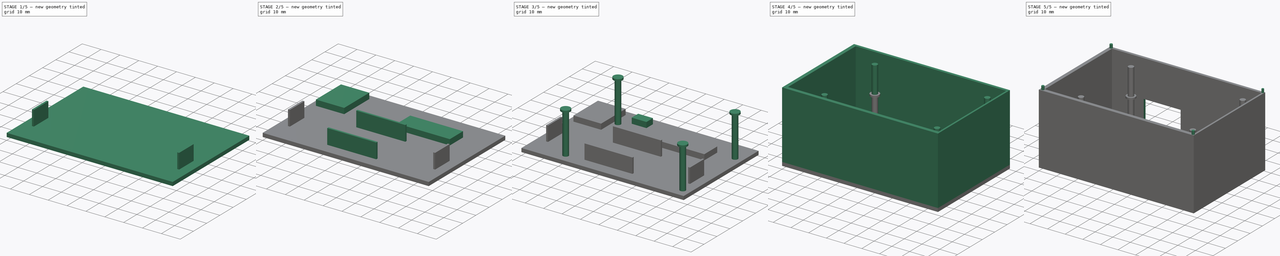
[diagram: build sequence overview — one tinted view per stage of 5, left to right]
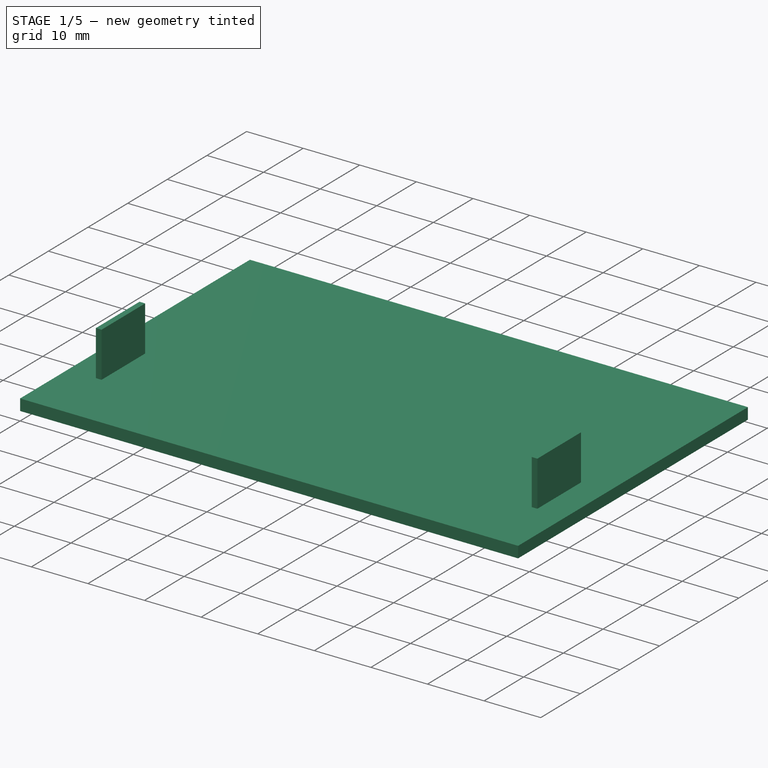
[diagram: stage 1 of 5 — iso view after this stage's code; geometry added in this stage tinted green]
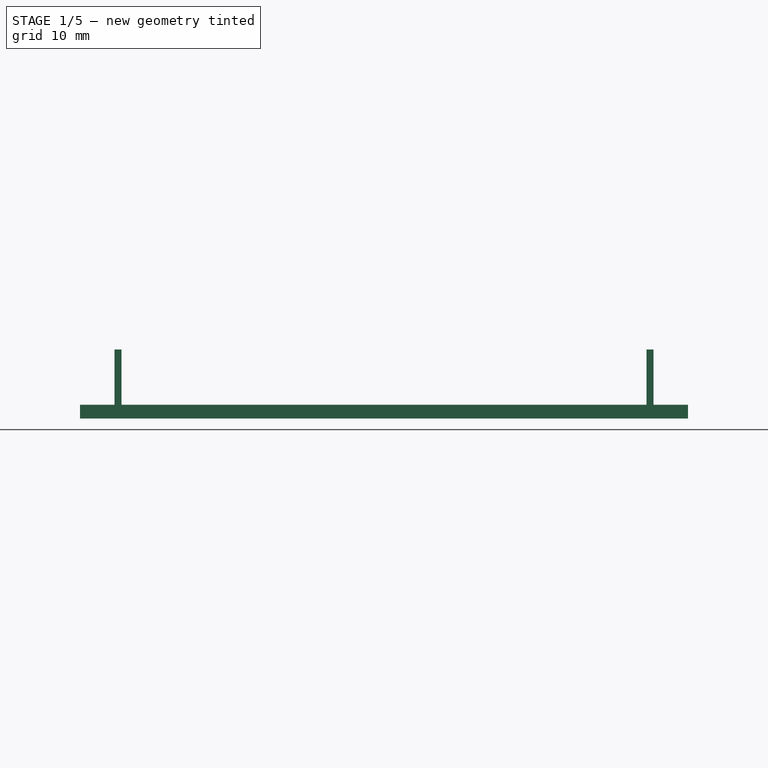
[diagram: stage 1 of 5 — front view after this stage's code; geometry added in this stage tinted green]
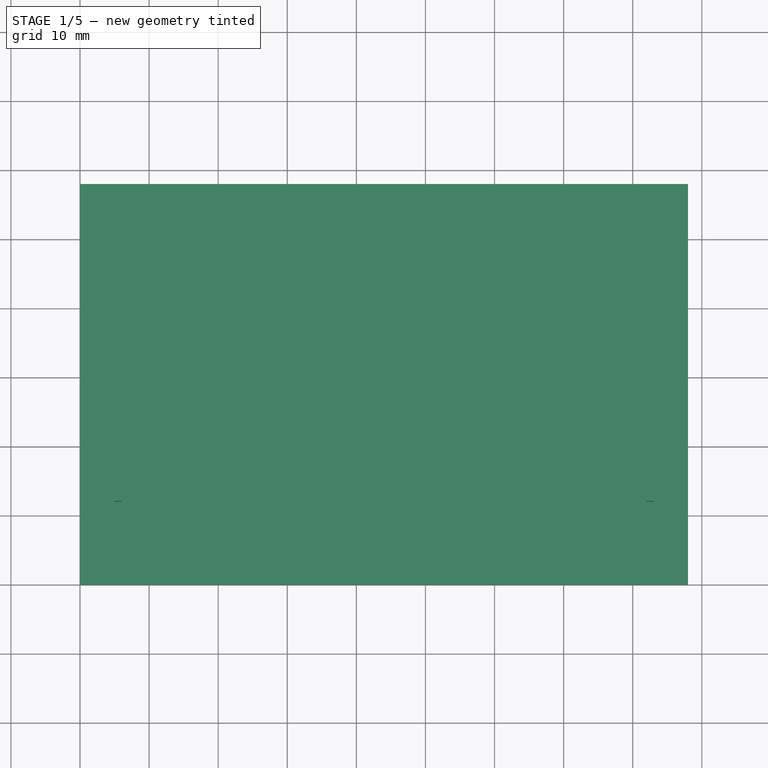
[diagram: stage 1 of 5 — top view after this stage's code; geometry added in this stage tinted green]
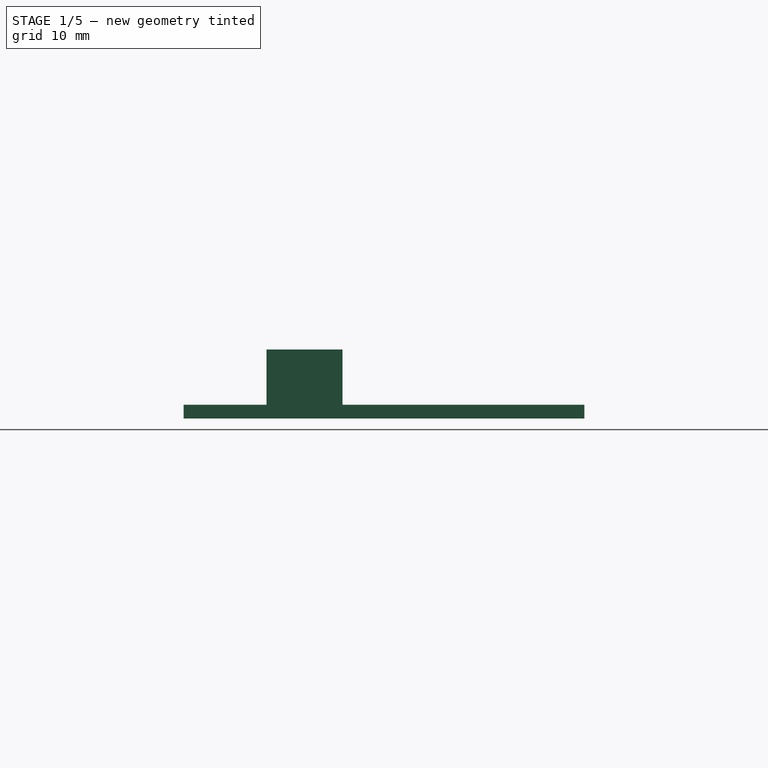
[diagram: stage 1 of 5 — right view after this stage's code; geometry added in this stage tinted green]
FCSTD DOCUMENT  (FreeCAD 1.0R39109 (Git))
Label: Bottom_pad_outside
License: All rights reserved
LicenseURL: http://en.wikipedia.org/wiki/All_rights_reserved
objects: Sketcher::SketchObject×15, PartDesign::Pad×14, PartDesign::Pocket×2, PartDesign::Body×1
note: 79 computed .brp shape members not serialized (recipe doc carries the construction recipe); baked Part::Feature solids carry a one-line shape summary decoded from their .brp

FEATURE [Sketcher::SketchObject] Sketch
  ArcFitTolerance = 1e-06
  AttachmentSupport = -> [XY_Plane]
  FullyConstrained = true
  MakeInternals = false
  MapMode = 5
  sketch-geometry (4):
    g0: LineSegment StartX=0 StartY=0 StartZ=0 EndX=88 EndY=0 EndZ=0
    g1: LineSegment StartX=88 StartY=0 StartZ=0 EndX=88 EndY=58 EndZ=0
    g2: LineSegment StartX=88 StartY=58 StartZ=0 EndX=0 EndY=58 EndZ=0
    g3: LineSegment StartX=0 StartY=58 StartZ=0 EndX=0 EndY=0 EndZ=0
  constraints (11):
    c: Coincident(g0,g1)
    c: Coincident(g1,g2)
    c: Coincident(g2,g3)
    c: Coincident(g3,g0)
    c: Horizontal(g0)
    c: Horizontal(g2)
    c: Vertical(g1)
    c: Vertical(g3)
    c: Distance(g1,g3) = 88
    c: Distance(g0,g2) = 58
    c: Coincident(g0,g-1)
FEATURE [PartDesign::Pad] Pad
  Direction = (0,0,1)
  Length = 2
  Length2 = 10
  Profile = -> Sketch
  ReferenceAxis = -> Sketch [N_Axis]
  Suppressed = false
  Type = 0
FEATURE [Sketcher::SketchObject] Sketch001
  ArcFitTolerance = 1e-06
  AttachmentSupport = -> [Pad]
  FullyConstrained = true
  MakeInternals = false
  MapMode = 5
  Placement = pos=(0,0,2) rot=(0,0,1;0rad)
  sketch-geometry (4):
    g0: LineSegment StartX=6 StartY=12 StartZ=0 EndX=5 EndY=12 EndZ=0
    g1: LineSegment StartX=5 StartY=12 StartZ=0 EndX=5 EndY=23 EndZ=0
    g2: LineSegment StartX=5 StartY=23 StartZ=0 EndX=6 EndY=23 EndZ=0
    g3: LineSegment StartX=6 StartY=23 StartZ=0 EndX=6 EndY=12 EndZ=0
  constraints (12):
    c: Coincident(g0,g1)
    c: Coincident(g1,g2)
    c: Coincident(g2,g3)
    c: Coincident(g3,g0)
    c: Horizontal(g0)
    c: Horizontal(g2)
    c: Vertical(g1)
    c: Vertical(g3)
    c: Distance(g1,g3) = 1
    c: Distance(g0,g2) = 11
    c: Distance(g1,g-2) = 5
    c: Distance(g-1,g0) = 12
FEATURE [PartDesign::Pad] Pad001
  BaseFeature = -> Pad
  Direction = (0,0,1)
  Length = 8
  Length2 = 10
  Profile = -> Sketch001
  ReferenceAxis = -> Sketch001 [N_Axis]
  Suppressed = false
  Type = 0
FEATURE [Sketcher::SketchObject] Sketch002
  ArcFitTolerance = 1e-06
  AttachmentSupport = -> [Pad001]
  FullyConstrained = true
  MakeInternals = false
  MapMode = 5
  Placement = pos=(0,0,2) rot=(0,0,1;0rad)
  sketch-geometry (4):
    g0: LineSegment StartX=83 StartY=23 StartZ=0 EndX=83 EndY=12 EndZ=0
    g1: LineSegment StartX=83 StartY=12 StartZ=0 EndX=82 EndY=12 EndZ=0
    g2: LineSegment StartX=82 StartY=12 StartZ=0 EndX=82 EndY=23 EndZ=0
    g3: LineSegment StartX=82 StartY=23 StartZ=0 EndX=83 EndY=23 EndZ=0
  constraints (12):
    c: Coincident(g0,g1)
    c: Coincident(g1,g2)
    c: Coincident(g2,g3)
    c: Coincident(g3,g0)
    c: Vertical(g0)
    c: Vertical(g2)
    c: Horizontal(g1)
    c: Horizontal(g3)
    c: Distance(g0,g2) = 1
    c: Distance(g1,g3) = 11
    c: Distance(g-1,g1) = 12
    c: Distance(g2,g-2) = 82
FEATURE [PartDesign::Pad] Pad002
  BaseFeature = -> Pad001
  Direction = (0,0,1)
  Length = 8
  Length2 = 10
  Profile = -> Sketch002
  ReferenceAxis = -> Sketch002 [N_Axis]
  Suppressed = false
  Type = 0
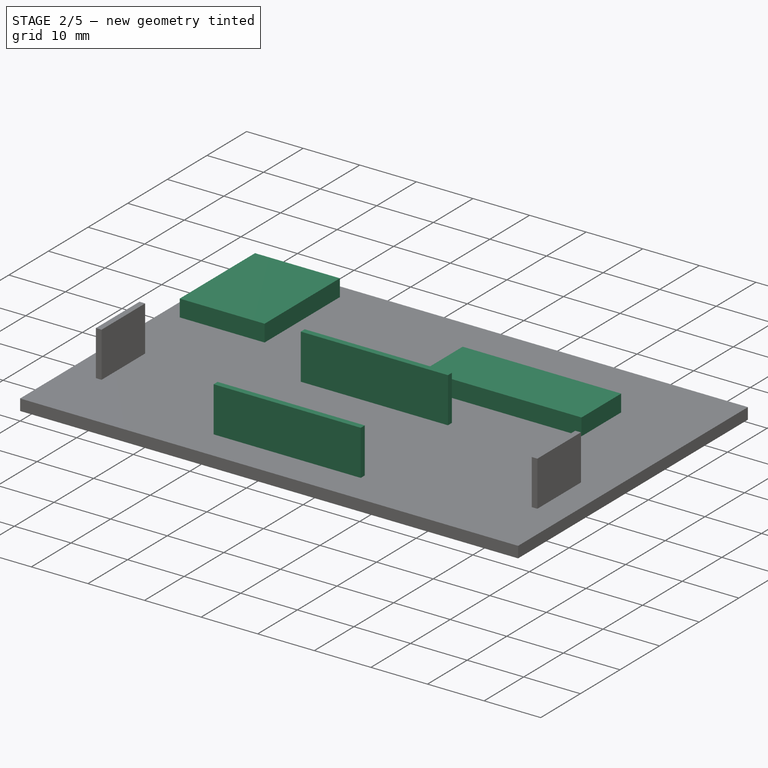
[diagram: stage 2 of 5 — iso view after this stage's code; geometry added in this stage tinted green]
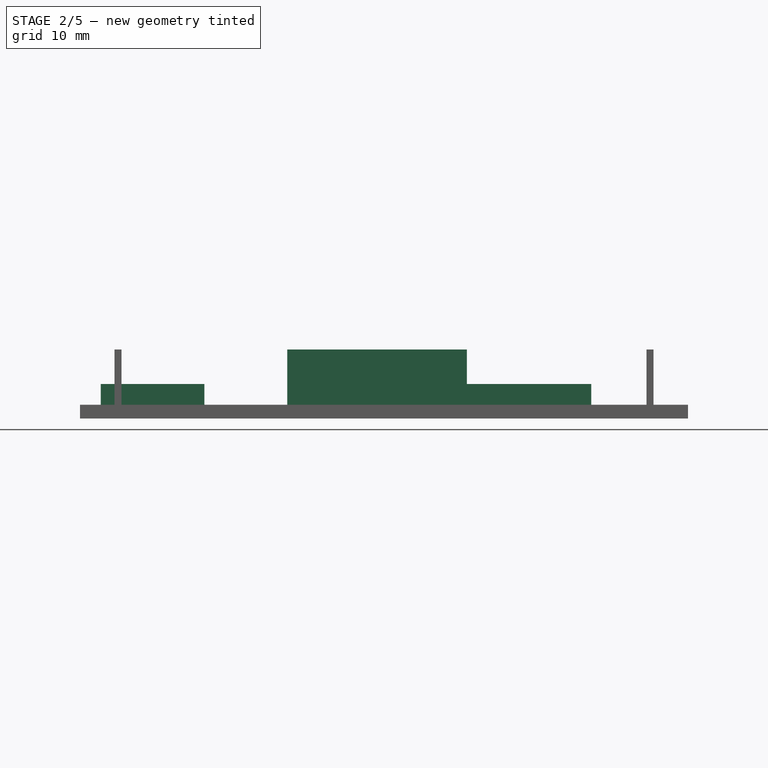
[diagram: stage 2 of 5 — front view after this stage's code; geometry added in this stage tinted green]
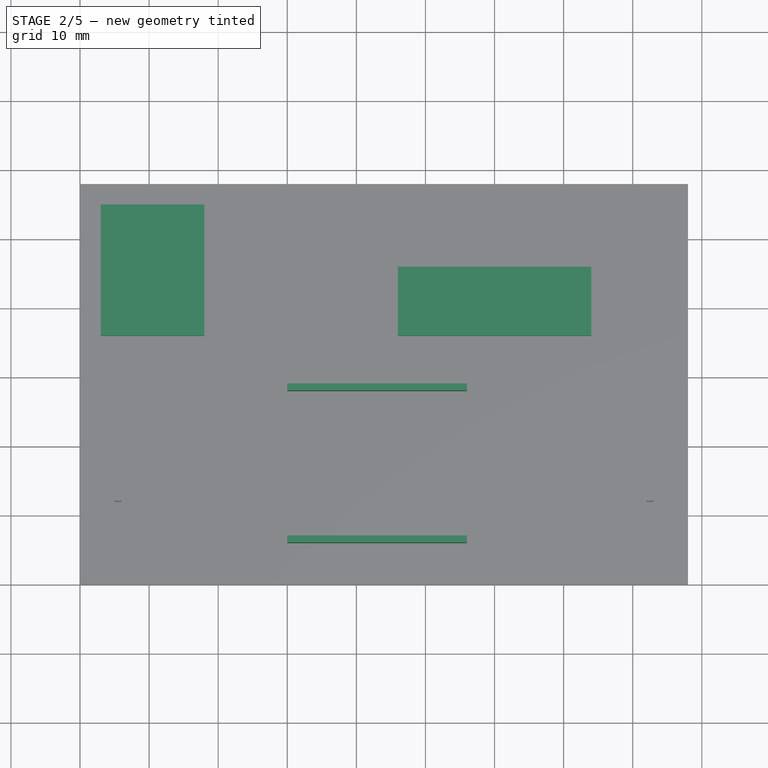
[diagram: stage 2 of 5 — top view after this stage's code; geometry added in this stage tinted green]
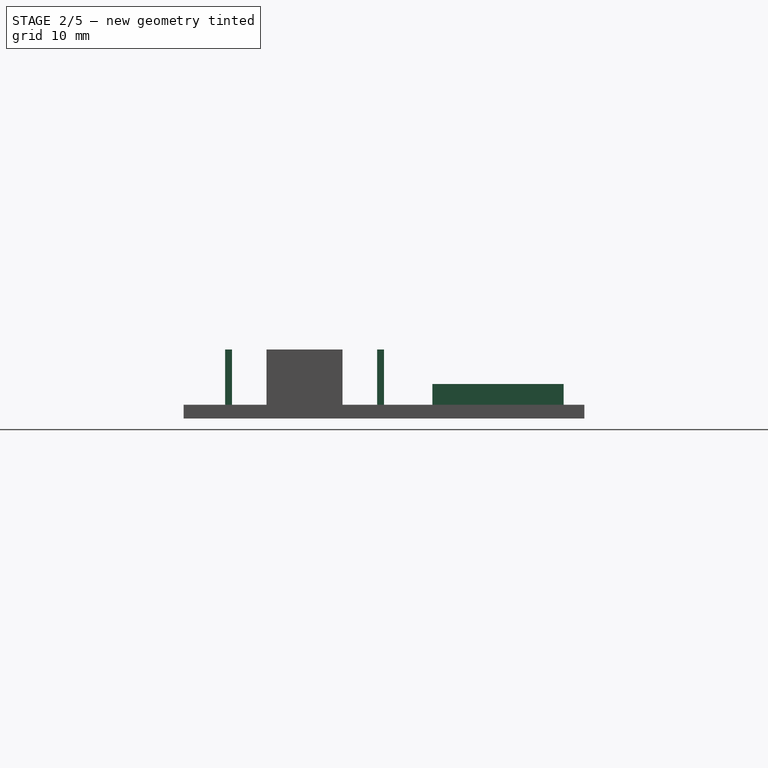
[diagram: stage 2 of 5 — right view after this stage's code; geometry added in this stage tinted green]
FEATURE [Sketcher::SketchObject] Sketch003
  ArcFitTolerance = 1e-06
  AttachmentSupport = -> [Pad002]
  FullyConstrained = true
  MakeInternals = false
  MapMode = 5
  Placement = pos=(0,0,2) rot=(0,0,1;0rad)
  sketch-geometry (8):
    g0: LineSegment StartX=30 StartY=7 StartZ=0 EndX=30 EndY=6 EndZ=0
    g1: LineSegment StartX=30 StartY=6 StartZ=0 EndX=56 EndY=6 EndZ=0
    g2: LineSegment StartX=56 StartY=6 StartZ=0 EndX=56 EndY=7 EndZ=0
    g3: LineSegment StartX=56 StartY=7 StartZ=0 EndX=30 EndY=7 EndZ=0
    g4: LineSegment StartX=30 StartY=29 StartZ=0 EndX=30 EndY=28 EndZ=0
    g5: LineSegment StartX=30 StartY=28 StartZ=0 EndX=56 EndY=28 EndZ=0
    g6: LineSegment StartX=56 StartY=28 StartZ=0 EndX=56 EndY=29 EndZ=0
    g7: LineSegment StartX=56 StartY=29 StartZ=0 EndX=30 EndY=29 EndZ=0
  constraints (24):
    c: Coincident(g0,g1)
    c: Coincident(g1,g2)
    c: Coincident(g2,g3)
    c: Coincident(g3,g0)
    c: Vertical(g0)
    c: Vertical(g2)
    c: Horizontal(g1)
    c: Horizontal(g3)
    c: Distance(g0,g2) = 26
    c: Distance(g1,g3) = 1
    c: Coincident(g4,g5)
    c: Coincident(g5,g6)
    c: Coincident(g6,g7)
    c: Coincident(g7,g4)
    c: Vertical(g4)
    c: Vertical(g6)
    c: Horizontal(g5)
    c: Horizontal(g7)
    c: Distance(g4,g6) = 26
    c: Distance(g5,g7) = 1
    c: Distance(g-2,g0) = 30
    c: Distance(g-2,g4) = 30
    c: Distance(g-1,g1) = 6
    c: Distance(g3,g5) = 21
FEATURE [PartDesign::Pad] Pad003
  BaseFeature = -> Pad002
  Direction = (0,0,1)
  Length = 8
  Length2 = 10
  Profile = -> Sketch003
  ReferenceAxis = -> Sketch003 [N_Axis]
  Suppressed = false
  Type = 0
FEATURE [Sketcher::SketchObject] Sketch004
  ArcFitTolerance = 1e-06
  AttachmentSupport = -> [Pad003]
  FullyConstrained = true
  MakeInternals = false
  MapMode = 5
  Placement = pos=(0,0,2) rot=(0,0,1;0rad)
  sketch-geometry (4):
    g0: LineSegment StartX=3 StartY=55 StartZ=0 EndX=3 EndY=36 EndZ=0
    g1: LineSegment StartX=3 StartY=36 StartZ=0 EndX=18 EndY=36 EndZ=0
    g2: LineSegment StartX=18 StartY=36 StartZ=0 EndX=18 EndY=55 EndZ=0
    g3: LineSegment StartX=18 StartY=55 StartZ=0 EndX=3 EndY=55 EndZ=0
  constraints (12):
    c: Coincident(g0,g1)
    c: Coincident(g1,g2)
    c: Coincident(g2,g3)
    c: Coincident(g3,g0)
    c: Vertical(g0)
    c: Vertical(g2)
    c: Horizontal(g1)
    c: Horizontal(g3)
    c: Distance(g0,g2) = 15
    c: Distance(g1,g3) = 19
    c: Distance(g-2,g0) = 3
    c: Distance(g1,g-1) = 36
FEATURE [PartDesign::Pad] Pad004
  BaseFeature = -> Pad003
  Direction = (0,0,1)
  Length = 3
  Length2 = 10
  Profile = -> Sketch004
  ReferenceAxis = -> Sketch004 [N_Axis]
  Suppressed = false
  Type = 0
FEATURE [Sketcher::SketchObject] Sketch005
  ArcFitTolerance = 1e-06
  AttachmentSupport = -> [Pad004]
  FullyConstrained = true
  MakeInternals = false
  MapMode = 5
  Placement = pos=(0,0,2) rot=(0,0,1;0rad)
  sketch-geometry (4):
    g0: LineSegment StartX=46 StartY=46 StartZ=0 EndX=46 EndY=36 EndZ=0
    g1: LineSegment StartX=46 StartY=36 StartZ=0 EndX=74 EndY=36 EndZ=0
    g2: LineSegment StartX=74 StartY=36 StartZ=0 EndX=74 EndY=46 EndZ=0
    g3: LineSegment StartX=74 StartY=46 StartZ=0 EndX=46 EndY=46 EndZ=0
  constraints (12):
    c: Coincident(g0,g1)
    c: Coincident(g1,g2)
    c: Coincident(g2,g3)
    c: Coincident(g3,g0)
    c: Vertical(g0)
    c: Vertical(g2)
    c: Horizontal(g1)
    c: Horizontal(g3)
    c: Distance(g0,g2) = 28
    c: Distance(g1,g3) = 10
    c: Distance(g-2,g0) = 46
    c: Distance(g-1,g1) = 36
FEATURE [PartDesign::Pad] Pad005
  BaseFeature = -> Pad004
  Direction = (0,0,1)
  Length = 3
  Length2 = 10
  Profile = -> Sketch005
  ReferenceAxis = -> Sketch005 [N_Axis]
  Suppressed = false
  Type = 0
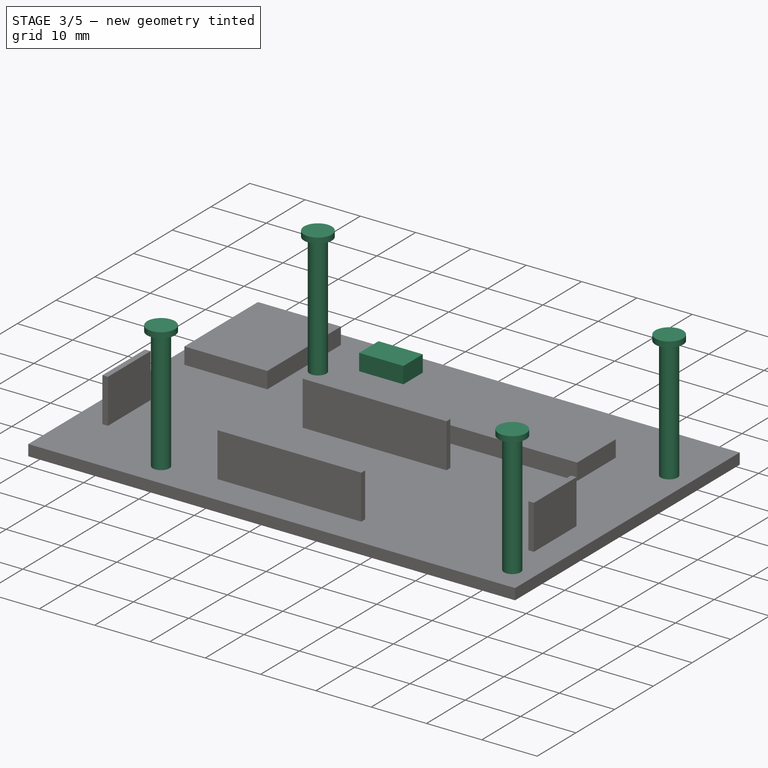
[diagram: stage 3 of 5 — iso view after this stage's code; geometry added in this stage tinted green]
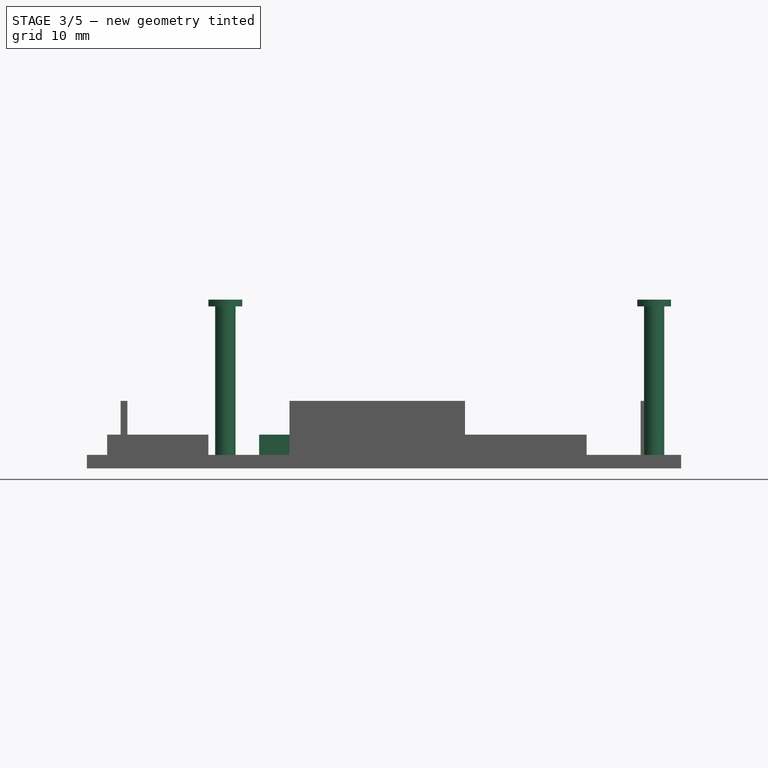
[diagram: stage 3 of 5 — front view after this stage's code; geometry added in this stage tinted green]
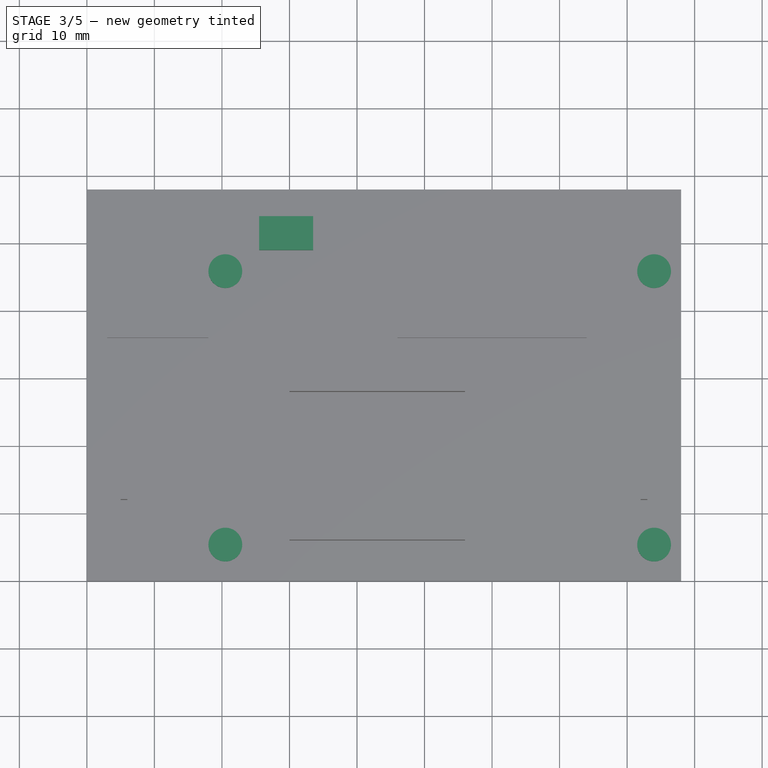
[diagram: stage 3 of 5 — top view after this stage's code; geometry added in this stage tinted green]
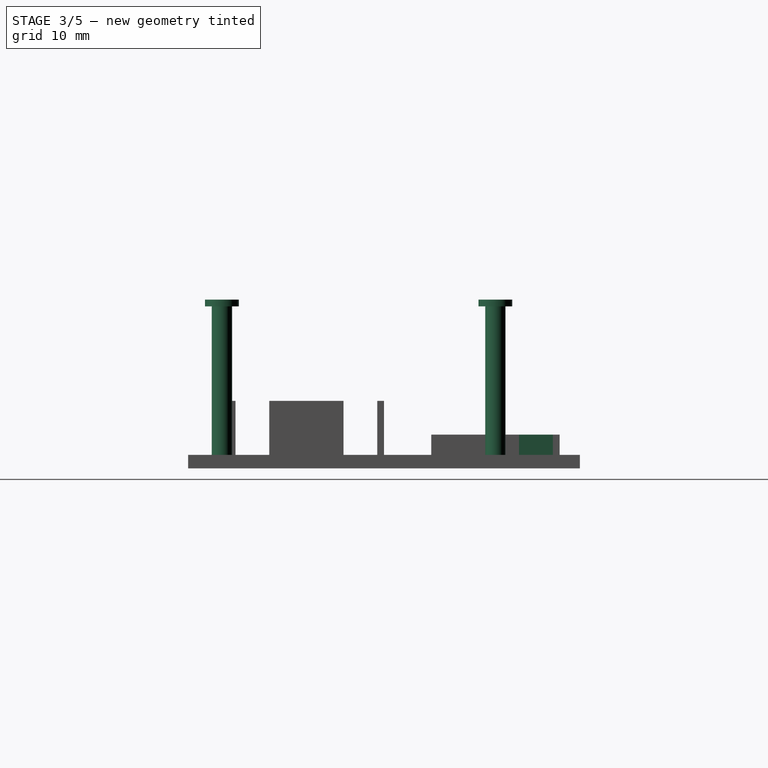
[diagram: stage 3 of 5 — right view after this stage's code; geometry added in this stage tinted green]
FEATURE [Sketcher::SketchObject] Sketch006
  ArcFitTolerance = 1e-06
  AttachmentSupport = -> [Pad005]
  FullyConstrained = true
  MakeInternals = false
  MapMode = 5
  Placement = pos=(0,0,2) rot=(0,0,1;0rad)
  sketch-geometry (4):
    g0: Circle CenterX=84 CenterY=5 CenterZ=0 NormalX=0 NormalY=0 NormalZ=1 AngleXU=0 Radius=1.5
    g1: Circle CenterX=20.5 CenterY=5 CenterZ=0 NormalX=0 NormalY=0 NormalZ=1 AngleXU=0 Radius=1.5
    g2: Circle CenterX=20.5 CenterY=45.5 CenterZ=0 NormalX=0 NormalY=0 NormalZ=1 AngleXU=0 Radius=1.5
    g3: Circle CenterX=84 CenterY=45.5 CenterZ=0 NormalX=0 NormalY=0 NormalZ=1 AngleXU=0 Radius=1.5
  constraints (12):
    c: Diameter(g0) = 3
    c: Distance(g0,g-2) = 84
    c: Distance(g0,g-1) = 5
    c: Diameter(g1) = 3
    c: DistanceX(g1,g0) = 63.5
    c: Distance(g1,g-1) = 5
    c: Diameter(g2) = 3
    c: DistanceY(g1,g2) = 40.5
    c: Distance(g2,g-2) = 20.5
    c: Diameter(g3) = 3
    c: DistanceY(g0,g3) = 40.5
    c: Distance(g3,g-2) = 84
FEATURE [PartDesign::Pad] Pad006
  BaseFeature = -> Pad005
  Direction = (0,0,1)
  Length = 22
  Length2 = 10
  Profile = -> Sketch006 [Edge1]
  ReferenceAxis = -> Sketch006 [N_Axis]
  Suppressed = false
  Type = 0
FEATURE [PartDesign::Pad] Pad007
  BaseFeature = -> Pad006
  Direction = (0,0,1)
  Length = 22
  Length2 = 10
  Profile = -> Sketch006
  ReferenceAxis = -> Sketch006 [N_Axis]
  Suppressed = false
  Type = 0
FEATURE [Sketcher::SketchObject] Sketch007
  ArcFitTolerance = 1e-06
  AttachmentSupport = -> [Pad007]
  FullyConstrained = true
  MakeInternals = false
  MapMode = 5
  Placement = pos=(0,0,2) rot=(0,0,1;0rad)
  sketch-geometry (4):
    g0: LineSegment StartX=25.5 StartY=54 StartZ=0 EndX=25.5 EndY=49 EndZ=0
    g1: LineSegment StartX=25.5 StartY=49 StartZ=0 EndX=33.5 EndY=49 EndZ=0
    g2: LineSegment StartX=33.5 StartY=49 StartZ=0 EndX=33.5 EndY=54 EndZ=0
    g3: LineSegment StartX=33.5 StartY=54 StartZ=0 EndX=25.5 EndY=54 EndZ=0
  constraints (12):
    c: Coincident(g0,g1)
    c: Coincident(g1,g2)
    c: Coincident(g2,g3)
    c: Coincident(g3,g0)
    c: Vertical(g0)
    c: Vertical(g2)
    c: Horizontal(g1)
    c: Horizontal(g3)
    c: Distance(g0,g2) = 8
    c: Distance(g1,g3) = 5
    c: Distance(g-2,g0) = 25.5
    c: Distance(g-1,g1) = 49
FEATURE [PartDesign::Pad] Pad008
  BaseFeature = -> Pad007
  Direction = (0,0,1)
  Length = 3
  Length2 = 10
  Profile = -> Sketch007
  ReferenceAxis = -> Sketch007 [N_Axis]
  Suppressed = false
  Type = 0
FEATURE [Sketcher::SketchObject] Sketch008
  ArcFitTolerance = 1e-06
  AttachmentSupport = -> [Pad007]
  FullyConstrained = true
  MakeInternals = false
  MapMode = 5
  Placement = pos=(0,0,24) rot=(0,0,1;0rad)
  sketch-geometry (4):
    g0: Circle CenterX=20.5 CenterY=5 CenterZ=0 NormalX=0 NormalY=0 NormalZ=1 AngleXU=0 Radius=2.5
    g1: Circle CenterX=84 CenterY=5 CenterZ=0 NormalX=0 NormalY=0 NormalZ=1 AngleXU=0 Radius=2.5
    g2: Circle CenterX=20.5 CenterY=45.5 CenterZ=0 NormalX=0 NormalY=0 NormalZ=1 AngleXU=0 Radius=2.5
    g3: Circle CenterX=84 CenterY=45.5 CenterZ=0 NormalX=0 NormalY=0 NormalZ=1 AngleXU=0 Radius=2.5
  constraints (12):
    c: Diameter(g0) = 5
    c: Distance(g0,g-1) = 5
    c: Distance(g0,g-2) = 20.5
    c: Diameter(g1) = 5
    c: Distance(g1,g-1) = 5
    c: Distance(g1,g-2) = 84
    c: Diameter(g2) = 5
    c: Distance(g2,g-2) = 20.5
    c: DistanceY(g0,g2) = 40.5
    c: Diameter(g3) = 5
    c: DistanceY(g1,g3) = 40.5
    c: Distance(g3,g-2) = 84
FEATURE [PartDesign::Pad] Pad009
  BaseFeature = -> Pad008
  Direction = (0,0,1)
  Length = 1
  Length2 = 10
  Profile = -> Sketch008
  ReferenceAxis = -> Sketch008 [N_Axis]
  Suppressed = false
  Type = 0
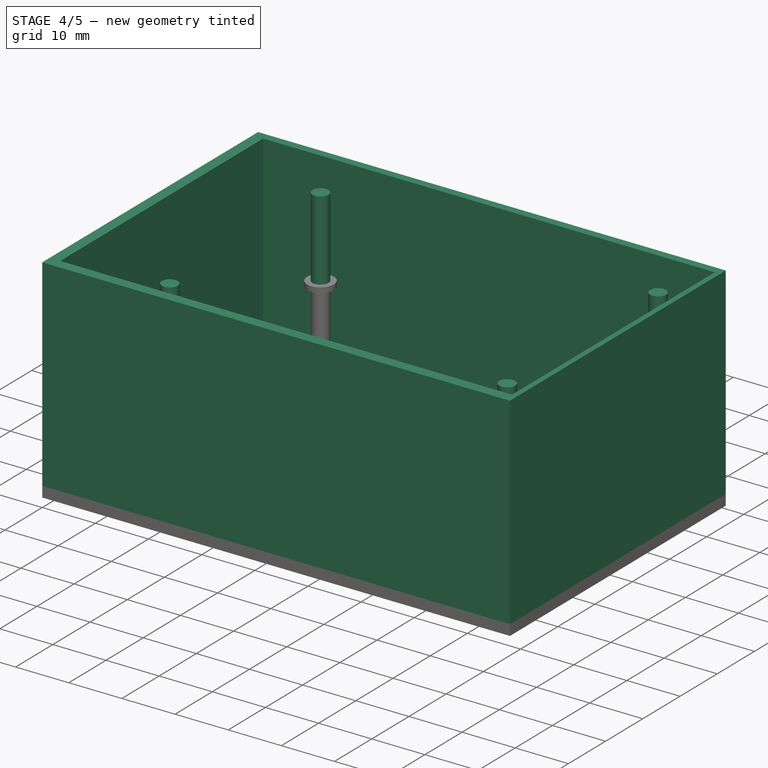
[diagram: stage 4 of 5 — iso view after this stage's code; geometry added in this stage tinted green]
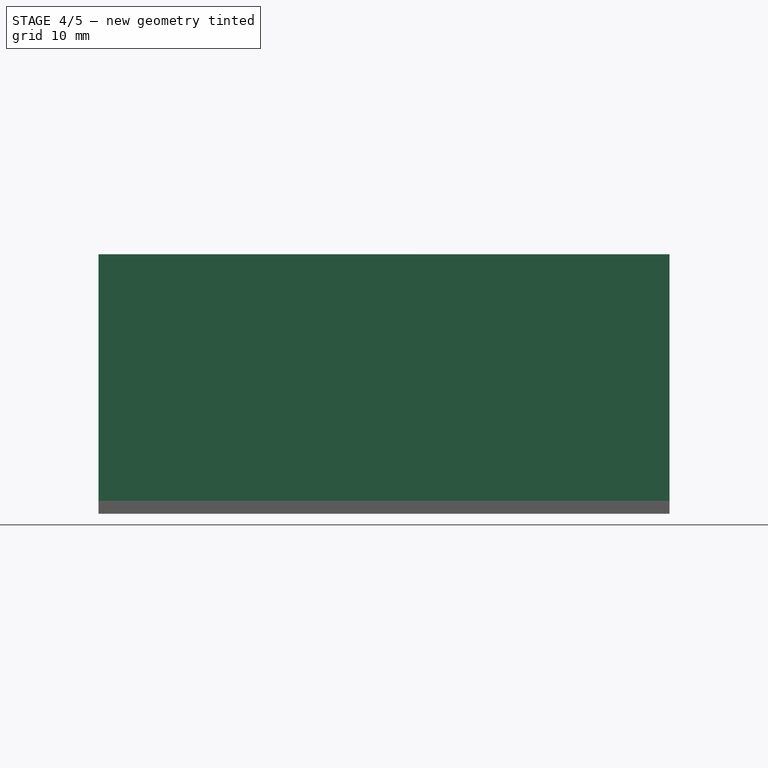
[diagram: stage 4 of 5 — front view after this stage's code; geometry added in this stage tinted green]
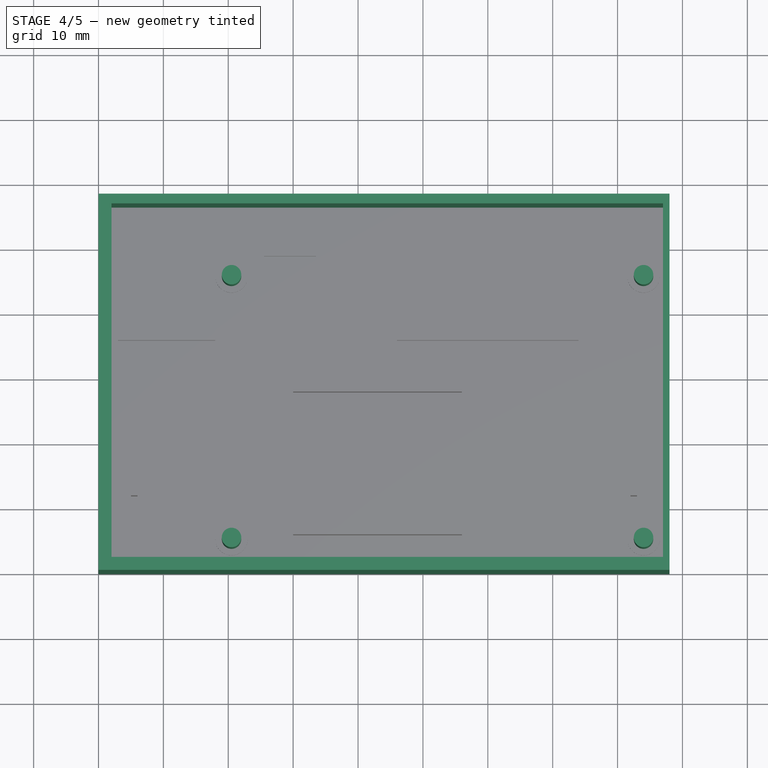
[diagram: stage 4 of 5 — top view after this stage's code; geometry added in this stage tinted green]
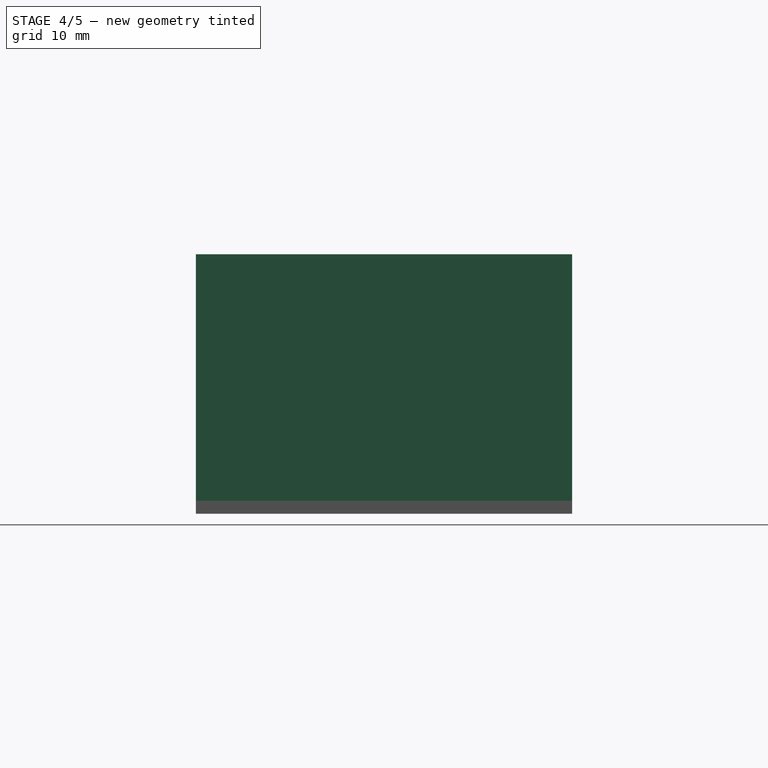
[diagram: stage 4 of 5 — right view after this stage's code; geometry added in this stage tinted green]
FEATURE [Sketcher::SketchObject] Sketch009
  ArcFitTolerance = 1e-06
  AttachmentSupport = -> [Pad009]
  FullyConstrained = true
  MakeInternals = false
  MapMode = 5
  Placement = pos=(0,0,25) rot=(0,0,1;0rad)
  sketch-geometry (4):
    g0: Circle CenterX=20.5 CenterY=5 CenterZ=0 NormalX=0 NormalY=0 NormalZ=1 AngleXU=0 Radius=1.5
    g1: Circle CenterX=84 CenterY=5 CenterZ=0 NormalX=0 NormalY=0 NormalZ=1 AngleXU=0 Radius=1.5
    g2: Circle CenterX=20.5 CenterY=45.5 CenterZ=0 NormalX=0 NormalY=0 NormalZ=1 AngleXU=0 Radius=1.5
    g3: Circle CenterX=84 CenterY=45.5 CenterZ=0 NormalX=0 NormalY=0 NormalZ=1 AngleXU=0 Radius=1.5
  constraints (12):
    c: Diameter(g0) = 3
    c: Distance(g0,g-2) = 20.5
    c: Distance(g0,g-1) = 5
    c: Diameter(g1) = 3
    c: Distance(g1,g-1) = 5
    c: Distance(g1,g-2) = 84
    c: Diameter(g2) = 3
    c: Distance(g2,g-2) = 20.5
    c: DistanceY(g0,g2) = 40.5
    c: Diameter(g3) = 3
    c: Distance(g3,g-2) = 84
    c: DistanceY(g1,g3) = 40.5
FEATURE [PartDesign::Pad] Pad010
  BaseFeature = -> Pad009
  Direction = (0,0,1)
  Length = 15
  Length2 = 10
  Profile = -> Sketch009
  ReferenceAxis = -> Sketch009 [N_Axis]
  Suppressed = false
  Type = 0
FEATURE [Sketcher::SketchObject] Sketch010
  ArcFitTolerance = 1e-06
  AttachmentSupport = -> [Pad010]
  FullyConstrained = true
  MakeInternals = false
  MapMode = 5
  Placement = pos=(0,0,2) rot=(0,0,1;0rad)
  sketch-geometry (8):
    g0: LineSegment StartX=0 StartY=0 StartZ=0 EndX=2 EndY=0 EndZ=0
    g1: LineSegment StartX=2 StartY=0 StartZ=0 EndX=2 EndY=58 EndZ=0
    g2: LineSegment StartX=2 StartY=58 StartZ=0 EndX=0 EndY=58 EndZ=0
    g3: LineSegment StartX=0 StartY=58 StartZ=0 EndX=0 EndY=0 EndZ=0
    g4: LineSegment StartX=88 StartY=1e-05 StartZ=0 EndX=88 EndY=58 EndZ=0
    g5: LineSegment StartX=88 StartY=58 StartZ=0 EndX=87 EndY=58 EndZ=0
    g6: LineSegment StartX=87 StartY=58 StartZ=0 EndX=87 EndY=1e-05 EndZ=0
    g7: LineSegment StartX=87 StartY=1e-05 StartZ=0 EndX=88 EndY=1e-05 EndZ=0
  constraints (23):
    c: Coincident(g0,g1)
    c: Coincident(g1,g2)
    c: Coincident(g2,g3)
    c: Coincident(g3,g0)
    c: Horizontal(g0)
    c: Horizontal(g2)
    c: Vertical(g1)
    c: Vertical(g3)
    c: Distance(g1,g3) = 2
    c: Distance(g0,g2) = 58
    c: Coincident(g0,g-1)
    c: Coincident(g4,g5)
    c: Coincident(g5,g6)
    c: Coincident(g6,g7)
    c: Coincident(g7,g4)
    c: Vertical(g4)
    c: Vertical(g6)
    c: Horizontal(g5)
    c: Horizontal(g7)
    c: Distance(g4,g6) = 1
    c: Distance(g5,g7) = 58
    c: Distance(g1,g6) = 85
    c: Distance(g-1,g7) = 1e-05
FEATURE [Sketcher::SketchObject] Sketch011
  ArcFitTolerance = 1e-06
  AttachmentSupport = -> [Pad010]
  FullyConstrained = true
  MakeInternals = false
  MapMode = 5
  Placement = pos=(0,0,2) rot=(0,0,1;0rad)
  sketch-geometry (8):
    g0: LineSegment StartX=2 StartY=2 StartZ=0 EndX=2 EndY=0 EndZ=0
    g1: LineSegment StartX=2 StartY=0 StartZ=0 EndX=87 EndY=0 EndZ=0
    g2: LineSegment StartX=87 StartY=0 StartZ=0 EndX=87 EndY=2 EndZ=0
    g3: LineSegment StartX=87 StartY=2 StartZ=0 EndX=2 EndY=2 EndZ=0
    g4: LineSegment StartX=2 StartY=58 StartZ=0 EndX=2 EndY=56.5 EndZ=0
    g5: LineSegment StartX=2 StartY=56.5 StartZ=0 EndX=87 EndY=56.5 EndZ=0
    g6: LineSegment StartX=87 StartY=56.5 StartZ=0 EndX=87 EndY=58 EndZ=0
    g7: LineSegment StartX=87 StartY=58 StartZ=0 EndX=2 EndY=58 EndZ=0
  constraints (24):
    c: Coincident(g0,g1)
    c: Coincident(g1,g2)
    c: Coincident(g2,g3)
    c: Coincident(g3,g0)
    c: Vertical(g0)
    c: Vertical(g2)
    c: Horizontal(g1)
    c: Horizontal(g3)
    c: Distance(g0,g2) = 85
    c: Distance(g1,g3) = 2
    c: PointOnObject(g1,g-1)
    c: Distance(g-2,g0) = 2
    c: Coincident(g4,g5)
    c: Coincident(g5,g6)
    c: Coincident(g6,g7)
    c: Coincident(g7,g4)
    c: Vertical(g4)
    c: Vertical(g6)
    c: Horizontal(g5)
    c: Horizontal(g7)
    c: Distance(g4,g6) = 85
    c: Distance(g5,g7) = 1.5
    c: Distance(g-2,g4) = 2
    c: Distance(g3,g5) = 54.5
FEATURE [PartDesign::Pad] Pad011
  BaseFeature = -> Pad010
  Direction = (0,0,1)
  Length = 38
  Length2 = 10
  Profile = -> Sketch010
  ReferenceAxis = -> Sketch010 [N_Axis]
  Suppressed = false
  Type = 0
FEATURE [PartDesign::Pad] Pad012
  BaseFeature = -> Pad011
  Direction = (0,0,1)
  Length = 38
  Length2 = 10
  Profile = -> Sketch011
  ReferenceAxis = -> Sketch011 [N_Axis]
  Suppressed = false
  Type = 0
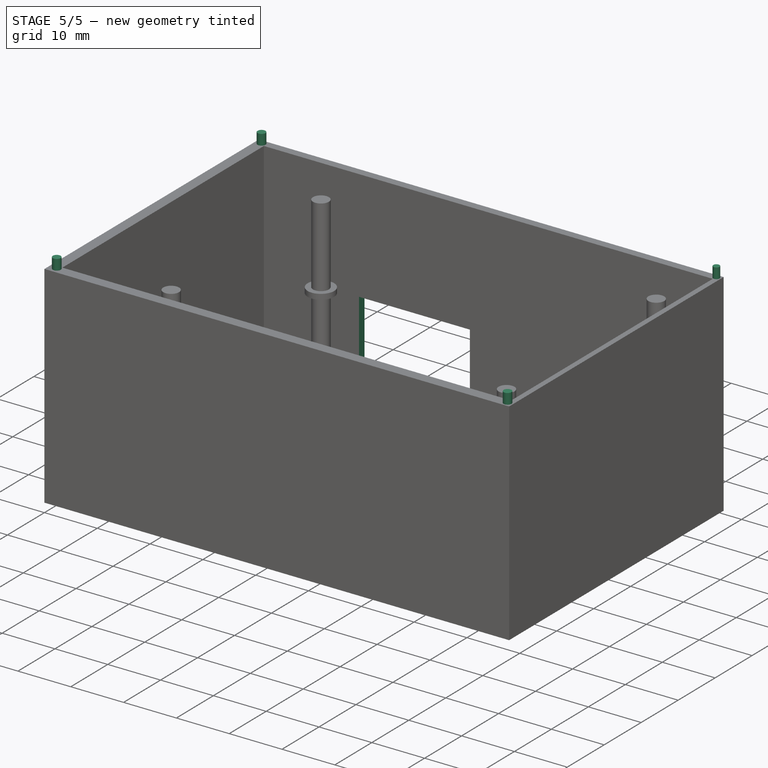
[diagram: stage 5 of 5 — iso view after this stage's code; geometry added in this stage tinted green]
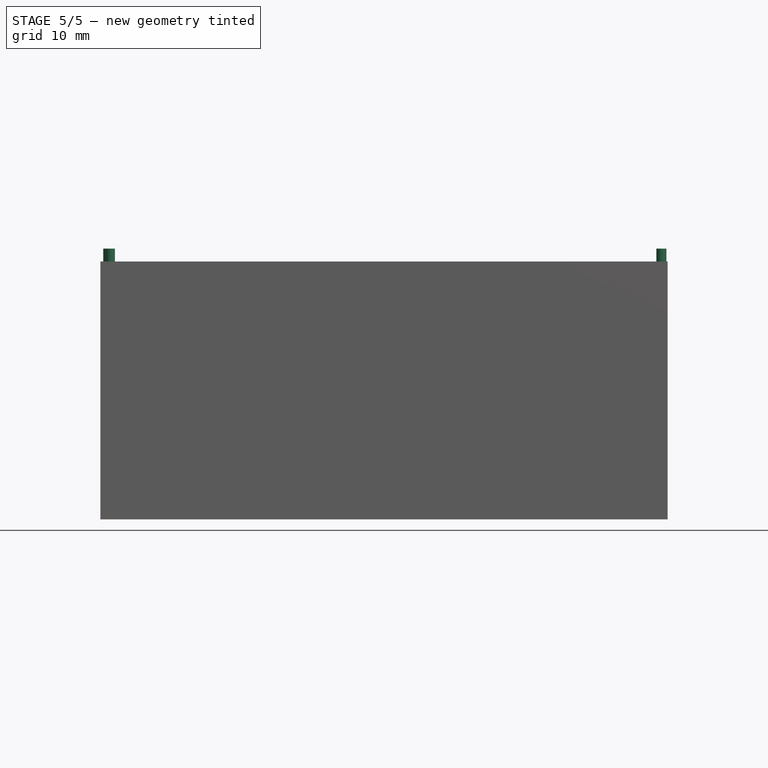
[diagram: stage 5 of 5 — front view after this stage's code; geometry added in this stage tinted green]
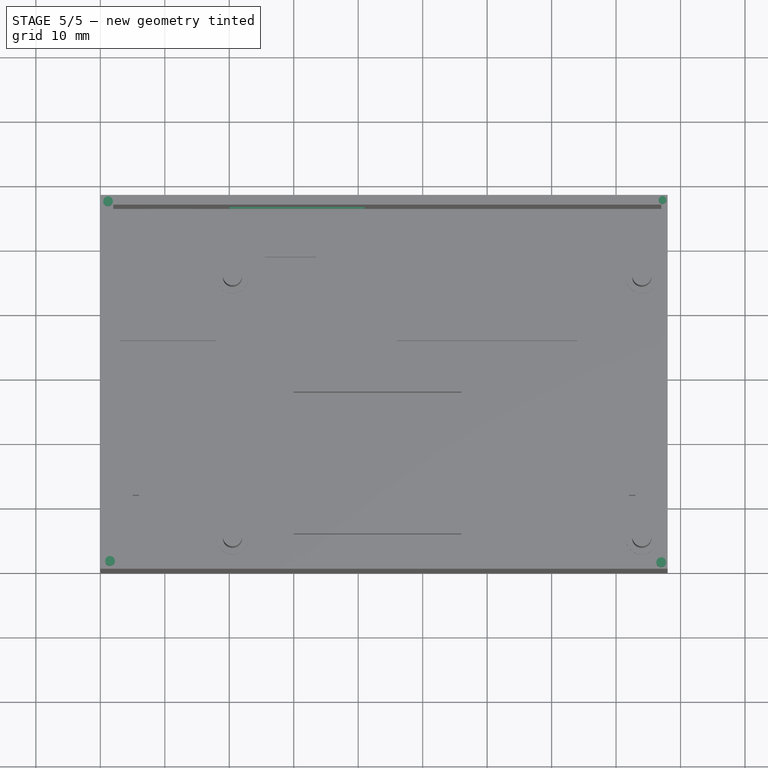
[diagram: stage 5 of 5 — top view after this stage's code; geometry added in this stage tinted green]
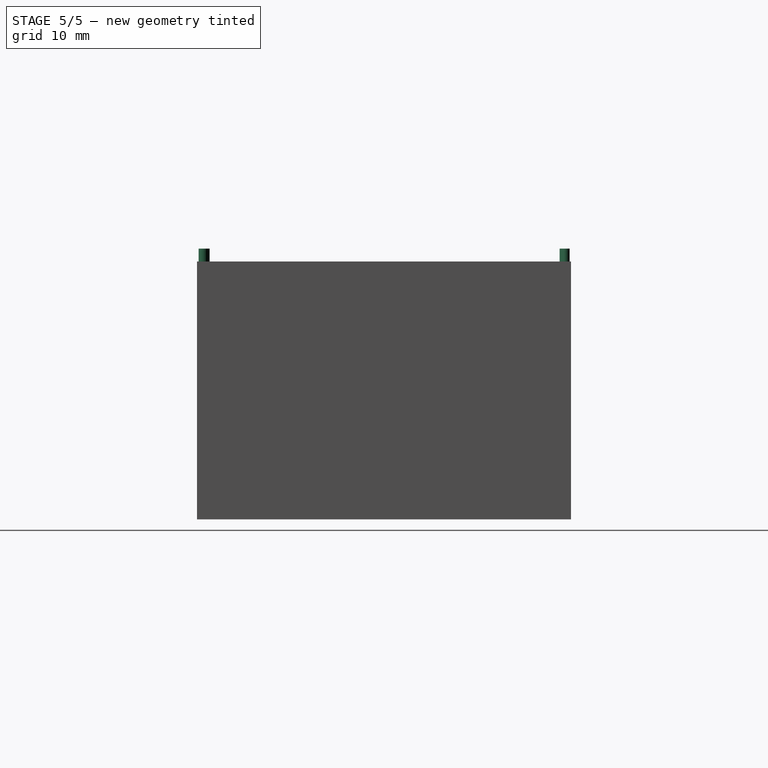
[diagram: stage 5 of 5 — right view after this stage's code; geometry added in this stage tinted green]
FEATURE [Sketcher::SketchObject] Sketch012
  ArcFitTolerance = 1e-06
  AttachmentSupport = -> [Pad012]
  FullyConstrained = true
  MakeInternals = false
  MapMode = 5
  Placement = pos=(0,0,40) rot=(0,0,1;0rad)
  sketch-geometry (4):
    g0: Circle CenterX=1.5 CenterY=1.2 CenterZ=0 NormalX=0 NormalY=0 NormalZ=1 AngleXU=0 Radius=0.75
    g1: Circle CenterX=1.2 CenterY=57 CenterZ=0 NormalX=0 NormalY=0 NormalZ=1 AngleXU=0 Radius=0.75
    g2: Circle CenterX=87.2 CenterY=57.2 CenterZ=0 NormalX=0 NormalY=0 NormalZ=1 AngleXU=0 Radius=0.6
    g3: Circle CenterX=87 CenterY=1 CenterZ=0 NormalX=0 NormalY=0 NormalZ=1 AngleXU=0 Radius=0.75
  constraints (12):
    c: Diameter(g0) = 1.5
    c: Distance(g0,g-2) = 1.5
    c: Distance(g0,g-1) = 1.2
    c: Diameter(g1) = 1.5
    c: Distance(g1,g-2) = 1.2
    c: Distance(g1,g-1) = 57
    c: Diameter(g2) = 1.2
    c: Distance(g2,g-2) = 87.2
    c: DistanceY(g-1,g2) = 57.2
    c: Diameter(g3) = 1.5
    c: Distance(g3,g-1) = 1
    c: DistanceX(g-1,g3) = 87
FEATURE [PartDesign::Pad] Pad013
  BaseFeature = -> Pad012
  Direction = (0,0,1)
  Length = 2
  Length2 = 10
  Profile = -> Sketch012
  ReferenceAxis = -> Sketch012 [N_Axis]
  Suppressed = false
  Type = 0
FEATURE [Sketcher::SketchObject] Sketch013
  ArcFitTolerance = 1e-06
  AttachmentSupport = -> [Pad013]
  FullyConstrained = true
  MakeInternals = false
  MapMode = 5
  Placement = pos=(0,58,0) rot=(0,0.707107,0.707107;3.14159rad)
  sketch-geometry (4):
    g0: ArcOfCircle CenterX=-8 CenterY=6 CenterZ=0 NormalX=0 NormalY=0 NormalZ=1 AngleXU=0 Radius=1 StartAngle=4.71239 EndAngle=7.85398
    g1: ArcOfCircle CenterX=-13.5 CenterY=6 CenterZ=0 NormalX=0 NormalY=0 NormalZ=1 AngleXU=0 Radius=1 StartAngle=1.5708 EndAngle=4.71239
    g2: LineSegment StartX=-8 StartY=5 StartZ=0 EndX=-13.5 EndY=5 EndZ=0
    g3: LineSegment StartX=-8 StartY=7 StartZ=0 EndX=-13.5 EndY=7 EndZ=0
  constraints (10):
    c: Tangent(g0,g2) = 1.5708
    c: Tangent(g0,g3) = -1.5708
    c: Tangent(g1,g2) = 1.5708
    c: Tangent(g1,g3) = -1.5708
    c: Equal(g0,g1)
    c: Horizontal(g3)
    c: Distance(g0,g1) = 5.5
    c: Radius(g0) = 1
    c: DistanceX(g0,g-1) = 8
    c: Distance(g0,g-1) = 6
FEATURE [PartDesign::Pocket] Pocket
  BaseFeature = -> Pad013
  Direction = (0,-1,2e-16)
  Length = 1.5
  Length2 = 5
  Profile = -> Sketch013
  ReferenceAxis = -> Sketch013 [N_Axis]
  Suppressed = false
  Type = 0
FEATURE [Sketcher::SketchObject] Sketch014
  ArcFitTolerance = 1e-06
  AttachmentSupport = -> [Pocket]
  FullyConstrained = true
  MakeInternals = false
  MapMode = 5
  Placement = pos=(0,58,0) rot=(0,0.707107,0.707107;3.14159rad)
  sketch-geometry (4):
    g0: LineSegment StartX=-20 StartY=4 StartZ=0 EndX=-20 EndY=19 EndZ=0
    g1: LineSegment StartX=-20 StartY=19 StartZ=0 EndX=-41 EndY=19 EndZ=0
    g2: LineSegment StartX=-41 StartY=19 StartZ=0 EndX=-41 EndY=4 EndZ=0
    g3: LineSegment StartX=-41 StartY=4 StartZ=0 EndX=-20 EndY=4 EndZ=0
  constraints (12):
    c: Coincident(g0,g1)
    c: Coincident(g1,g2)
    c: Coincident(g2,g3)
    c: Coincident(g3,g0)
    c: Vertical(g0)
    c: Vertical(g2)
    c: Horizontal(g1)
    c: Horizontal(g3)
    c: Distance(g0,g2) = 21
    c: Distance(g1,g3) = 15
    c: Distance(g-2,g0) = 20
    c: Distance(g-1,g3) = 4
FEATURE [PartDesign::Pocket] Pocket001
  BaseFeature = -> Pocket
  Direction = (0,-1,2e-16)
  Length = 1.5
  Length2 = 5
  Profile = -> Sketch014
  ReferenceAxis = -> Sketch014 [N_Axis]
  Suppressed = false
  Type = 0
FEATURE [PartDesign::Body] Body  label="Zawartość"
  AllowCompound = false
  Group = -> [Sketch,Pad,Sketch001,Pad001,Sketch002,Pad002,Sketch003,Pad003,Sketch004,Pad004,Sketch005,Pad005,Sketch006,Pad006,Pad007,Sketch007,Pad008,Sketch008,Pad009,Sketch009,Pad010,Sketch010,Sketch011,Pad011,Pad012,Sketch012,Pad013,Sketch013,Pocket,Sketch014,Pocket001]
  Origin = -> Origin
  Tip = -> Pocket001
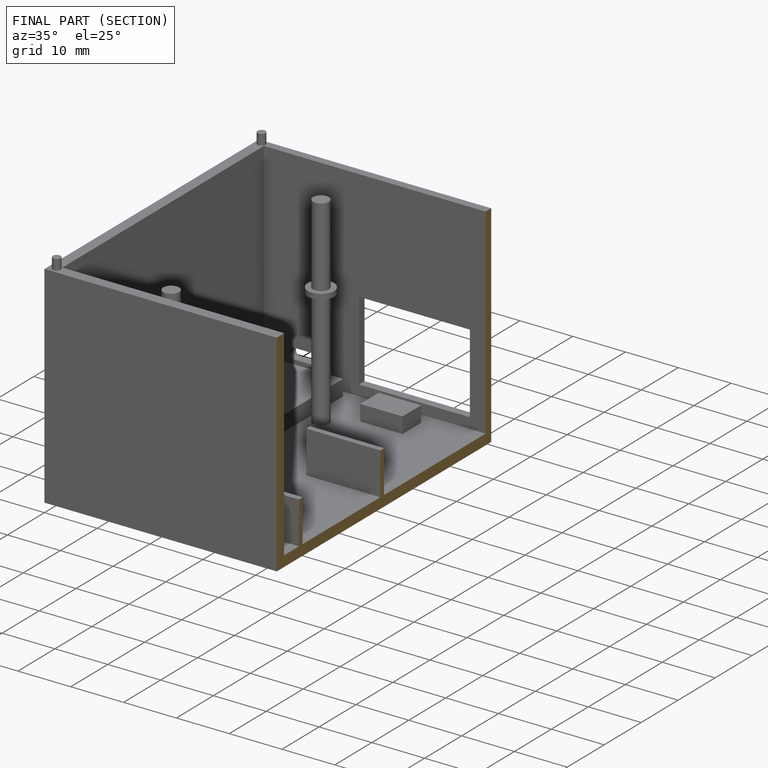
[diagram: finished part — half-section view (interior)]
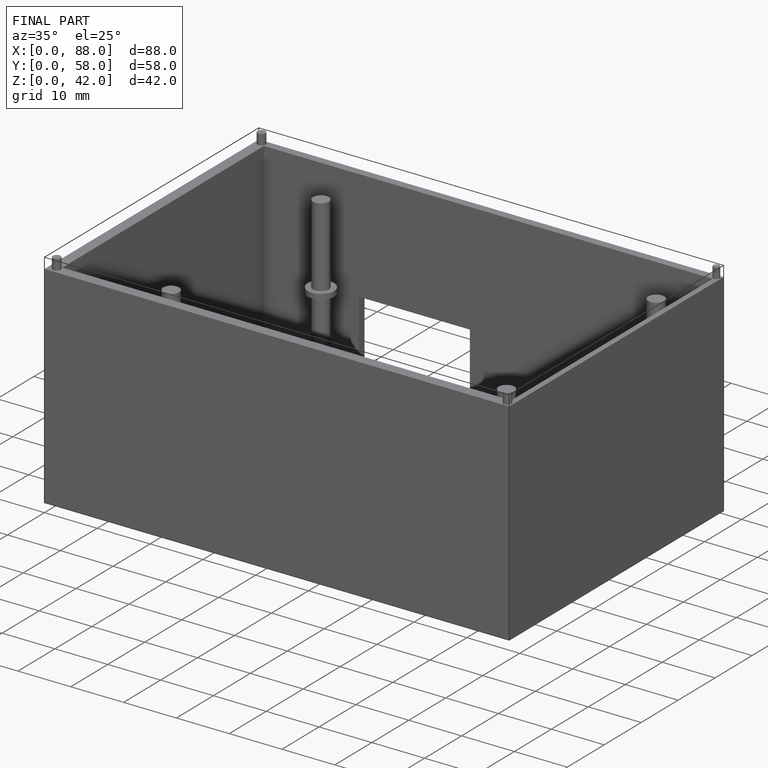
[diagram: finished part — iso view with bounding-box wireframe]
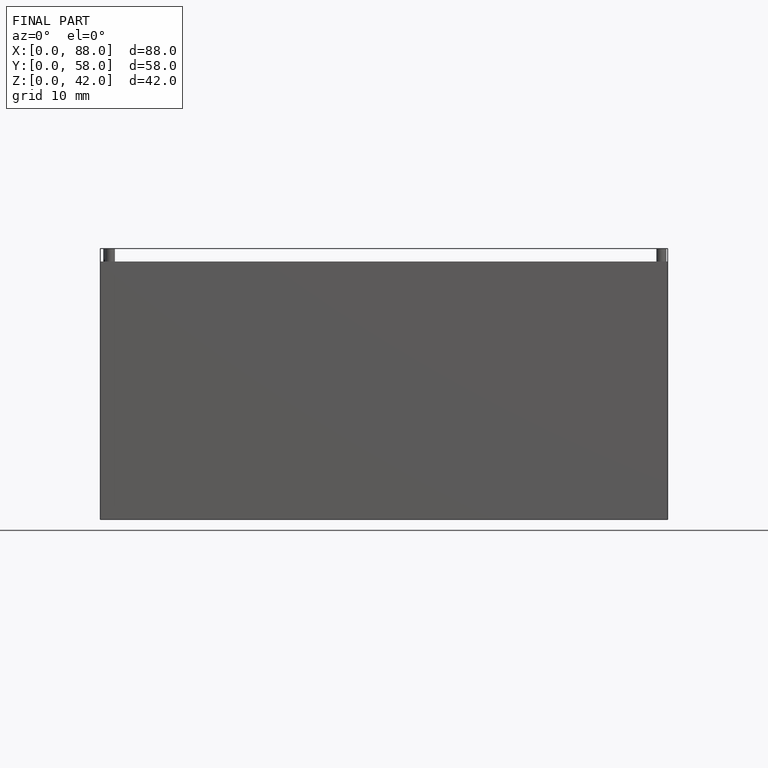
[diagram: finished part — front view with bounding-box wireframe]
